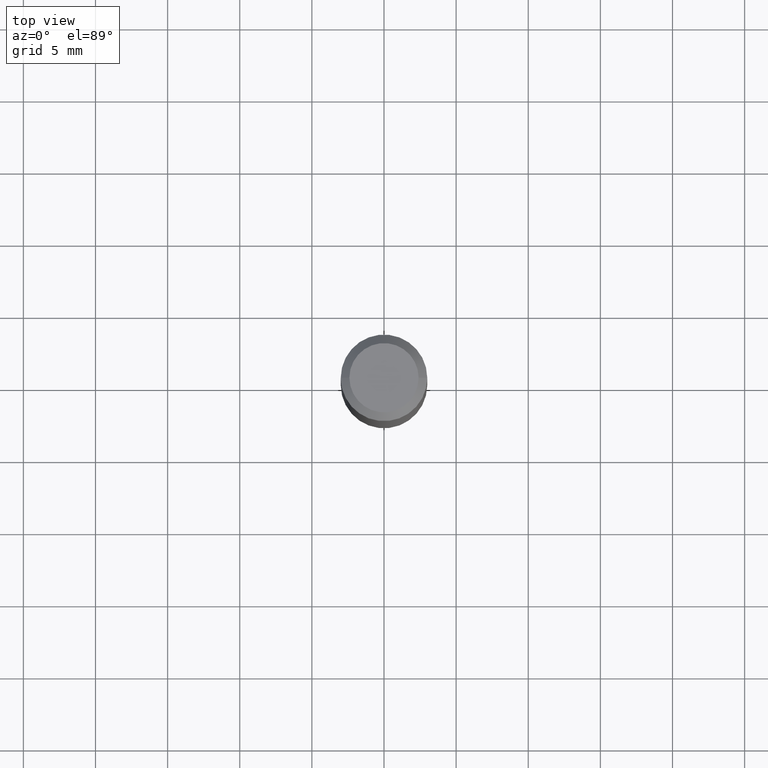
[diagram: clean part render]
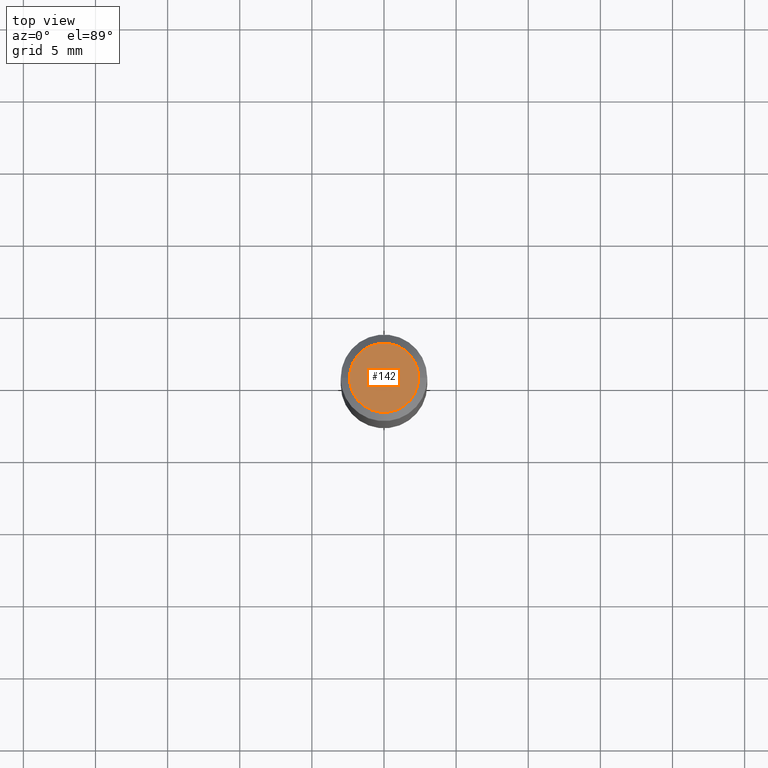
[diagram: same view with one face highlighted and labeled with its STEP entity id]
A machine part, top view. The second image highlights one B-rep face of the part: STEP entity #142.
In plain terms, the highlighted planar face has unit normal (0, -0, -1).
Its self-contained STEP definition (entity closure, byte-faithful):
#28 = ORIENTED_EDGE ( 'NONE', *, *, #219, .T. ) ;
#50 = ORIENTED_EDGE ( 'NONE', *, *, #403, .T. ) ;
#54 = DIRECTION ( 'NONE',  ( -1.000000000000000000, 6.982962677686265922E-15, -4.876176775795935793E-29 ) ) ;
#79 = CIRCLE ( 'NONE', #229, 0.09447999999999998066 ) ;
#96 = VERTEX_POINT ( 'NONE', #298 ) ;
#138 = EDGE_LOOP ( 'NONE', ( #50, #28 ) ) ;
#141 = CARTESIAN_POINT ( 'NONE',  ( 7.545787641473140628E-46, -1.077338491108201769E-31, -3.085620075131671975E-17 ) ) ;
#142 = ADVANCED_FACE ( 'NONE', ( #301 ), #263, .F. ) ;
#182 = DIRECTION ( 'NONE',  ( 1.000000000000000000, -6.982962677686267499E-15, 4.875432709231658792E-29 ) ) ;
#214 = AXIS2_PLACEMENT_3D ( 'NONE', #414, #486, #54 ) ;
#216 = DIRECTION ( 'NONE',  ( -2.445468806185136597E-29, 3.491481338843145583E-15, 1.000000000000000000 ) ) ;
#219 = EDGE_CURVE ( 'NONE', #390, #96, #458, .T. ) ;
#229 = AXIS2_PLACEMENT_3D ( 'NONE', #368, #490, #182 ) ;
#263 = PLANE ( 'NONE',  #214 ) ;
#297 = DIRECTION ( 'NONE',  ( 1.000000000000000000, -6.982962677686267499E-15, 4.875432709231658792E-29 ) ) ;
#298 = CARTESIAN_POINT ( 'NONE',  ( -0.09447999999999998066, 7.009847083995354710E-16, -3.085620075132147757E-17 ) ) ;
#301 = FACE_OUTER_BOUND ( 'NONE', #138, .T. ) ;
#368 = CARTESIAN_POINT ( 'NONE',  ( 7.545787641473140628E-46, -1.077338491108201769E-31, -3.085620075131671975E-17 ) ) ;
#390 = VERTEX_POINT ( 'NONE', #428 ) ;
#403 = EDGE_CURVE ( 'NONE', #96, #390, #79, .T. ) ;
#414 = CARTESIAN_POINT ( 'NONE',  ( 3.772893820736570314E-46, -5.386692455541008845E-32, -1.542810037565835988E-17 ) ) ;
#428 = CARTESIAN_POINT ( 'NONE',  ( 0.09447999999999998066, -7.704367267948738690E-16, -3.085620075131172158E-17 ) ) ;
#458 = CIRCLE ( 'NONE', #494, 0.09447999999999998066 ) ;
#486 = DIRECTION ( 'NONE',  ( 2.438088387897960049E-29, -3.491481338843145188E-15, -1.000000000000000000 ) ) ;
#490 = DIRECTION ( 'NONE',  ( -2.445468806185136597E-29, 3.491481338843145583E-15, 1.000000000000000000 ) ) ;
#494 = AXIS2_PLACEMENT_3D ( 'NONE', #141, #216, #297 ) ;